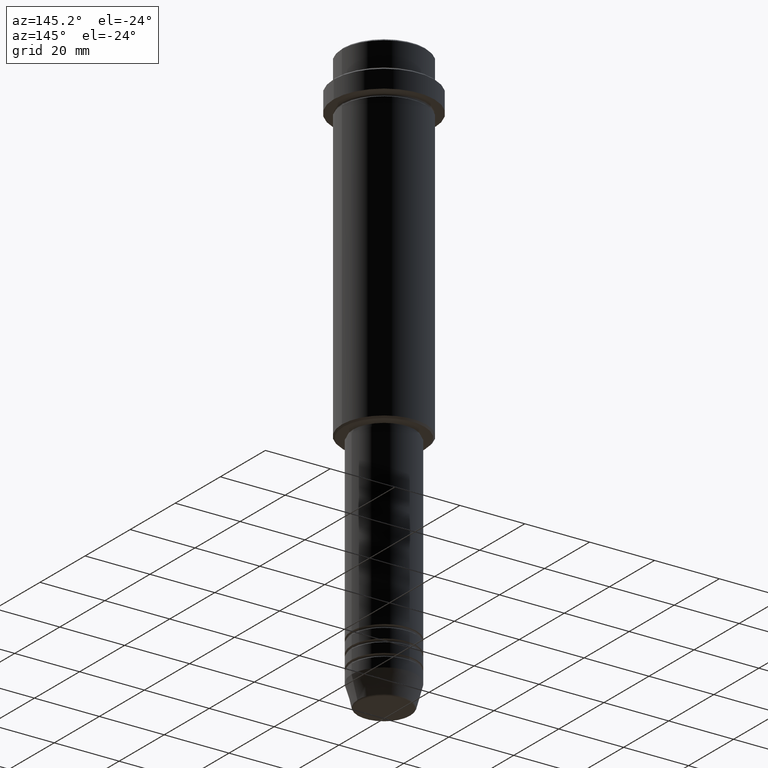
[diagram: clean part render]
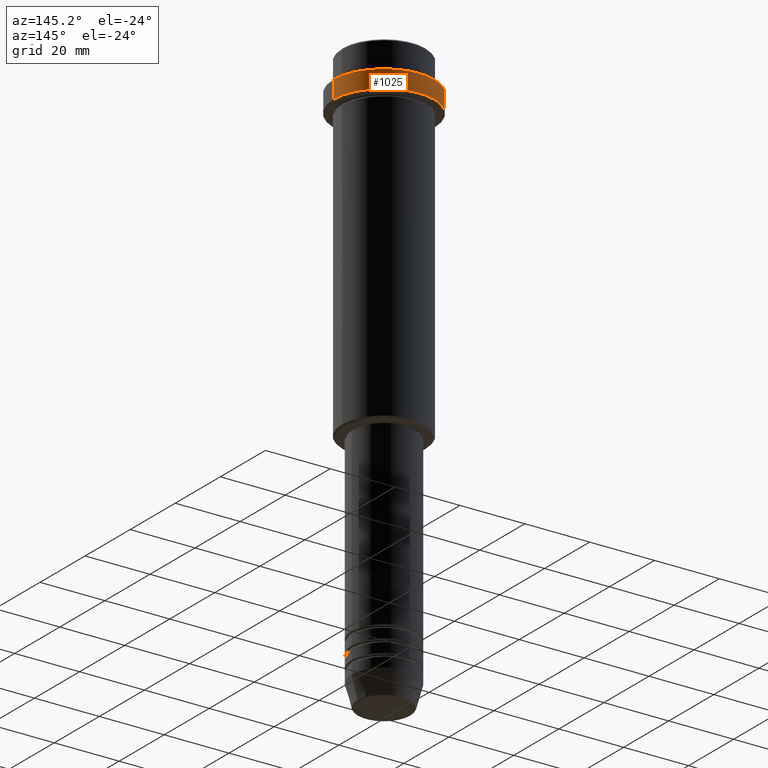
[diagram: same view with one face highlighted and labeled with its STEP entity id]
A machine part, auxiliary view. The second image highlights one B-rep face of the part: STEP entity #1025.
In plain terms, the highlighted cylindrical surface (partial cylindrical patch) has radius 15.5 mm, axis along (-0, -0, 1).
Its self-contained STEP definition (entity closure, byte-faithful):
#21 = DIRECTION ( 'NONE',  ( -0.000000000000000000, -0.000000000000000000, 1.000000000000000000 ) ) ;
#88 = DIRECTION ( 'NONE',  ( 0.000000000000000000, 0.000000000000000000, -1.000000000000000000 ) ) ;
#170 = VERTEX_POINT ( 'NONE', #500 ) ;
#180 = CARTESIAN_POINT ( 'NONE',  ( 15.50000000000000000, 0.000000000000000000, 0.000000000000000000 ) ) ;
#195 = ORIENTED_EDGE ( 'NONE', *, *, #256, .T. ) ;
#210 = VERTEX_POINT ( 'NONE', #1041 ) ;
#225 = CARTESIAN_POINT ( 'NONE',  ( -15.50000000000000000, 1.898202538678397557E-15, -14.99999999999998757 ) ) ;
#256 = EDGE_CURVE ( 'NONE', #1136, #210, #1212, .T. ) ;
#307 = ORIENTED_EDGE ( 'NONE', *, *, #951, .T. ) ;
#347 = CIRCLE ( 'NONE', #509, 15.50000000000000000 ) ;
#351 = CARTESIAN_POINT ( 'NONE',  ( -15.50000000000000000, 1.898202538678397557E-15, 0.000000000000000000 ) ) ;
#500 = CARTESIAN_POINT ( 'NONE',  ( 15.50000000000000000, 0.000000000000000000, -14.99999999999998757 ) ) ;
#509 = AXIS2_PLACEMENT_3D ( 'NONE', #839, #1039, #1170 ) ;
#521 = DIRECTION ( 'NONE',  ( -0.000000000000000000, -0.000000000000000000, 1.000000000000000000 ) ) ;
#543 = VERTEX_POINT ( 'NONE', #225 ) ;
#546 = EDGE_LOOP ( 'NONE', ( #769, #307, #195, #666 ) ) ;
#666 = ORIENTED_EDGE ( 'NONE', *, *, #729, .F. ) ;
#717 = CYLINDRICAL_SURFACE ( 'NONE', #1376, 15.50000000000000000 ) ;
#729 = EDGE_CURVE ( 'NONE', #170, #210, #865, .T. ) ;
#769 = ORIENTED_EDGE ( 'NONE', *, *, #1222, .T. ) ;
#820 = DIRECTION ( 'NONE',  ( 1.000000000000000000, 0.000000000000000000, 0.000000000000000000 ) ) ;
#839 = CARTESIAN_POINT ( 'NONE',  ( 0.000000000000000000, 0.000000000000000000, -14.99999999999998757 ) ) ;
#865 = LINE ( 'NONE', #180, #1099 ) ;
#887 = LINE ( 'NONE', #351, #897 ) ;
#897 = VECTOR ( 'NONE', #21, 1000.000000000000000 ) ;
#951 = EDGE_CURVE ( 'NONE', #543, #1136, #887, .T. ) ;
#1025 = ADVANCED_FACE ( 'NONE', ( #1361 ), #717, .T. ) ;
#1038 = DIRECTION ( 'NONE',  ( -0.000000000000000000, -0.000000000000000000, 1.000000000000000000 ) ) ;
#1039 = DIRECTION ( 'NONE',  ( -0.000000000000000000, -0.000000000000000000, 1.000000000000000000 ) ) ;
#1041 = CARTESIAN_POINT ( 'NONE',  ( 15.50000000000000000, 0.000000000000000000, -9.500000000000026645 ) ) ;
#1073 = AXIS2_PLACEMENT_3D ( 'NONE', #1299, #88, #1406 ) ;
#1099 = VECTOR ( 'NONE', #521, 1000.000000000000000 ) ;
#1136 = VERTEX_POINT ( 'NONE', #1367 ) ;
#1170 = DIRECTION ( 'NONE',  ( 1.000000000000000000, 0.000000000000000000, 0.000000000000000000 ) ) ;
#1212 = CIRCLE ( 'NONE', #1073, 15.50000000000000000 ) ;
#1222 = EDGE_CURVE ( 'NONE', #170, #543, #347, .T. ) ;
#1299 = CARTESIAN_POINT ( 'NONE',  ( 0.000000000000000000, 0.000000000000000000, -9.500000000000026645 ) ) ;
#1355 = CARTESIAN_POINT ( 'NONE',  ( 0.000000000000000000, 0.000000000000000000, 0.000000000000000000 ) ) ;
#1361 = FACE_OUTER_BOUND ( 'NONE', #546, .T. ) ;
#1367 = CARTESIAN_POINT ( 'NONE',  ( -15.50000000000000000, 1.898202538678397557E-15, -9.500000000000026645 ) ) ;
#1376 = AXIS2_PLACEMENT_3D ( 'NONE', #1355, #1038, #820 ) ;
#1406 = DIRECTION ( 'NONE',  ( 1.000000000000000000, 0.000000000000000000, 0.000000000000000000 ) ) ;